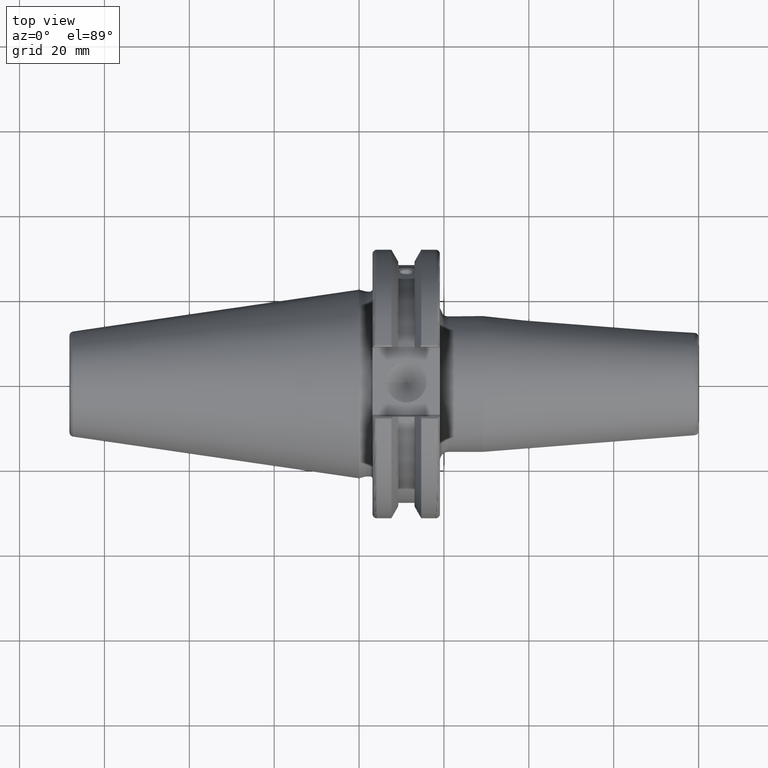
[diagram: clean part render]
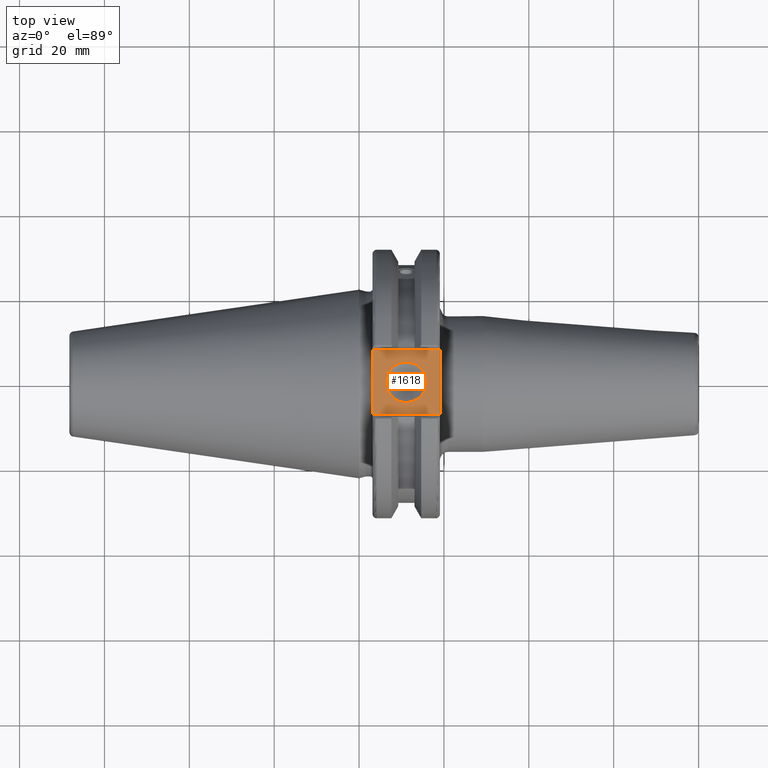
[diagram: same view with one face highlighted and labeled with its STEP entity id]
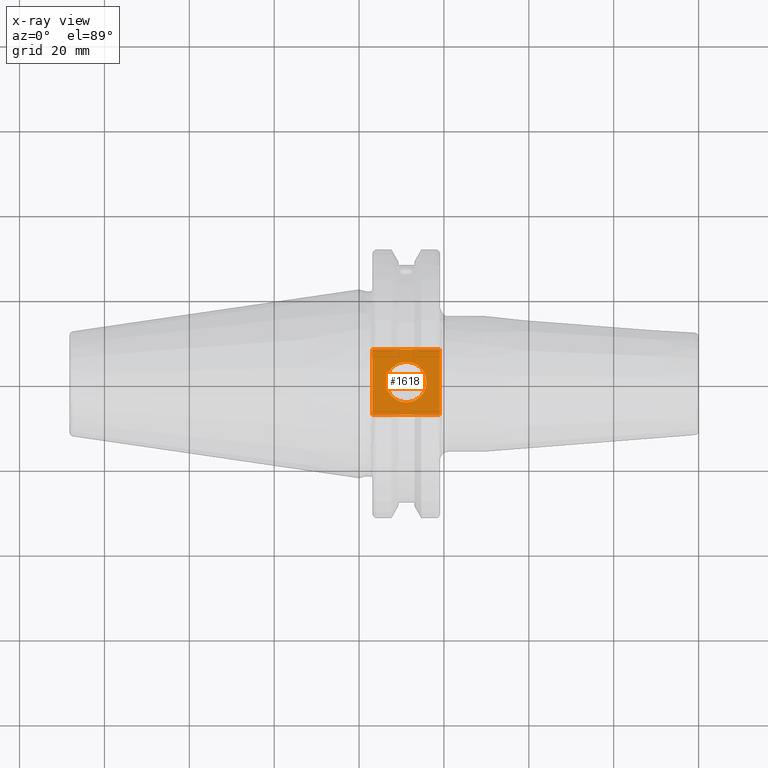
[diagram: x-ray of the same camera — body ghosted, the highlighted face saturated]
A machine part, top view. The second image highlights one B-rep face of the part: STEP entity #1618.
The next image is the same camera in x-ray: the body ghosted, the highlighted face saturated — about 0% of this face is hidden behind the body in this view.
In plain terms, the highlighted planar face has unit normal (0, 0, 1).
Its self-contained STEP definition (entity closure, byte-faithful):
#97=LINE('',#2361,#192);
#142=LINE('',#2807,#237);
#170=LINE('',#3036,#265);
#172=LINE('',#3039,#267);
#192=VECTOR('',#1894,10.);
#237=VECTOR('',#2131,10.);
#265=VECTOR('',#2225,10.);
#267=VECTOR('',#2229,10.);
#331=FACE_BOUND('',#568,.T.);
#370=PLANE('',#1827);
#458=FACE_OUTER_BOUND('',#567,.T.);
#567=EDGE_LOOP('',(#1493,#1494,#1495,#1496));
#568=EDGE_LOOP('',(#1497));
#644=CIRCLE('',#1815,4.7625);
#669=VERTEX_POINT('',#2358);
#670=VERTEX_POINT('',#2360);
#760=VERTEX_POINT('',#2804);
#761=VERTEX_POINT('',#2806);
#807=VERTEX_POINT('',#3075);
#832=EDGE_CURVE('',#669,#670,#97,.T.);
#955=EDGE_CURVE('',#760,#761,#142,.T.);
#1018=EDGE_CURVE('',#670,#760,#170,.T.);
#1020=EDGE_CURVE('',#761,#669,#172,.T.);
#1035=EDGE_CURVE('',#807,#807,#644,.T.);
#1493=ORIENTED_EDGE('',*,*,#1018,.F.);
#1494=ORIENTED_EDGE('',*,*,#832,.F.);
#1495=ORIENTED_EDGE('',*,*,#1020,.F.);
#1496=ORIENTED_EDGE('',*,*,#955,.F.);
#1497=ORIENTED_EDGE('',*,*,#1035,.T.);
#1618=ADVANCED_FACE('',(#458,#331),#370,.T.);
#1815=AXIS2_PLACEMENT_3D('',#3076,#2264,#2265);
#1827=AXIS2_PLACEMENT_3D('',#3089,#2289,#2290);
#1894=DIRECTION('',(0.,-1.,0.));
#2131=DIRECTION('',(0.,1.,0.));
#2225=DIRECTION('',(-1.,1.31581988103722E-16,0.));
#2229=DIRECTION('',(1.,0.,0.));
#2264=DIRECTION('center_axis',(0.,0.,-1.));
#2265=DIRECTION('ref_axis',(1.,0.,0.));
#2289=DIRECTION('center_axis',(0.,0.,1.));
#2290=DIRECTION('ref_axis',(1.,0.,0.));
#2358=CARTESIAN_POINT('',(19.05,7.69,25.));
#2360=CARTESIAN_POINT('',(19.05,-7.69,25.));
#2361=CARTESIAN_POINT('',(19.05,0.,25.));
#2804=CARTESIAN_POINT('',(3.175,-7.68999999999999,25.));
#2806=CARTESIAN_POINT('',(3.175,7.69,25.));
#2807=CARTESIAN_POINT('',(3.175,15.875,25.));
#3036=CARTESIAN_POINT('',(9.44125,-7.69,25.));
#3039=CARTESIAN_POINT('',(17.87875,7.69,25.));
#3075=CARTESIAN_POINT('',(6.3716,-5.83238038093927E-16,25.));
#3076=CARTESIAN_POINT('Origin',(11.1341,0.,25.));
#3089=CARTESIAN_POINT('Origin',(15.7075,0.,25.));